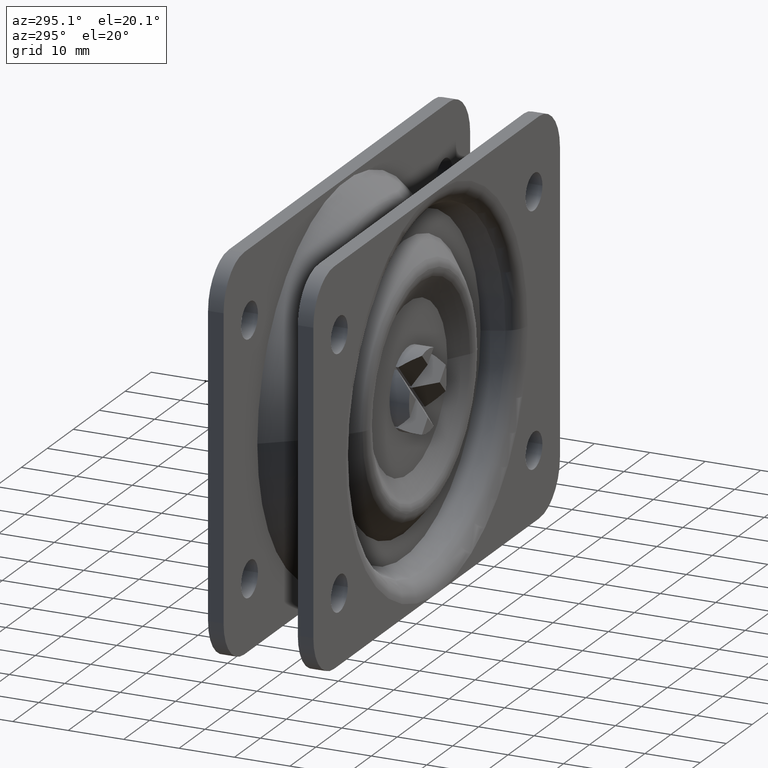
[diagram: clean part render]
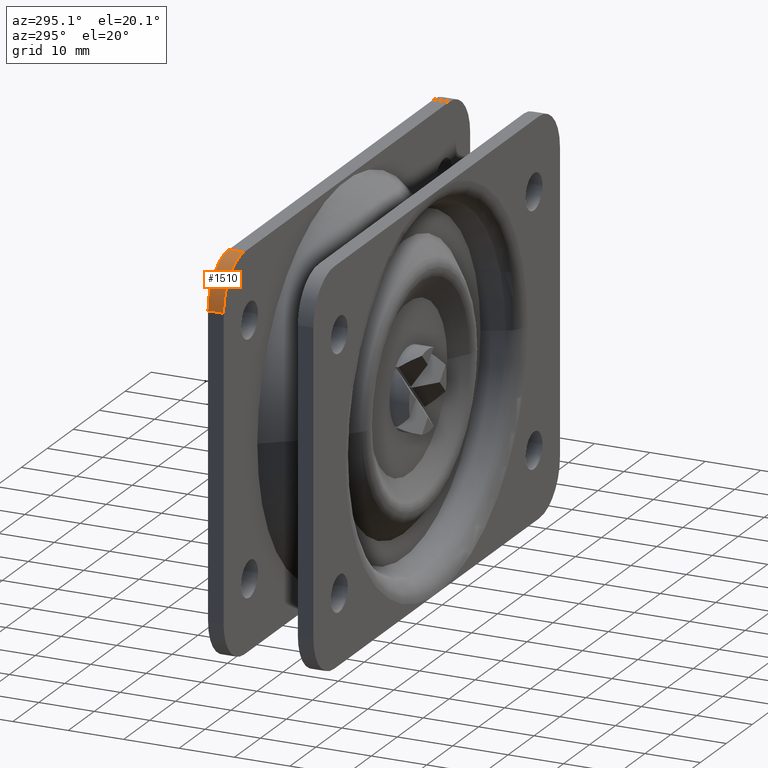
[diagram: same view with one face highlighted and labeled with its STEP entity id]
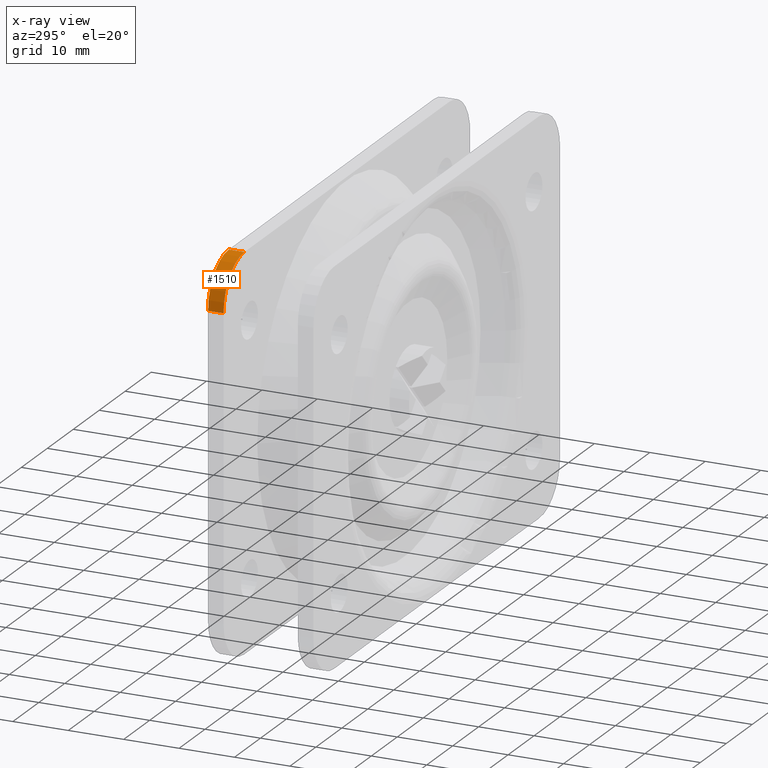
[diagram: x-ray of the same camera — body ghosted, the highlighted face saturated]
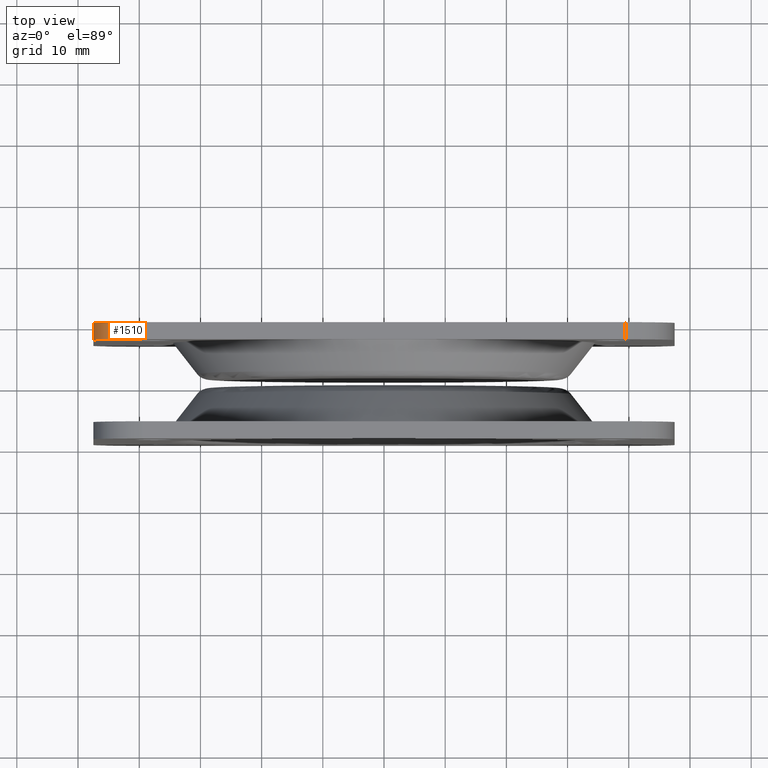
[diagram: same view with one face highlighted and labeled with its STEP entity id]
A machine part, auxiliary view. The second image highlights one B-rep face of the part: STEP entity #1510.
The next image is the same camera in x-ray: the body ghosted, the highlighted face saturated — about 0% of this face is hidden behind the body in this view.
A second angle (top view) of the same face is appended — the face is thin or edge-on in the first view.
In plain terms, the highlighted cylindrical surface (partial cylindrical patch) has radius 8 mm, axis along (0, 1, 0).
Its self-contained STEP definition (entity closure, byte-faithful):
#19 = VECTOR ( 'NONE', #3017, 1000.000000000000000 ) ;
#165 = DIRECTION ( 'NONE',  ( -1.000000000000000000, 0.0000000000000000000, 0.0000000000000000000 ) ) ;
#378 = VECTOR ( 'NONE', #1532, 1000.000000000000000 ) ;
#399 = ORIENTED_EDGE ( 'NONE', *, *, #927, .F. ) ;
#421 = ORIENTED_EDGE ( 'NONE', *, *, #459, .T. ) ;
#459 = EDGE_CURVE ( 'NONE', #1704, #2289, #1093, .T. ) ;
#570 = EDGE_LOOP ( 'NONE', ( #2336, #399, #4522, #421 ) ) ;
#644 = AXIS2_PLACEMENT_3D ( 'NONE', #3139, #2040, #165 ) ;
#672 = FACE_OUTER_BOUND ( 'NONE', #570, .T. ) ;
#704 = CIRCLE ( 'NONE', #644, 8.000000000000000000 ) ;
#811 = CIRCLE ( 'NONE', #2508, 8.000000000000000000 ) ;
#898 = CARTESIAN_POINT ( 'NONE',  ( -39.50000000000000711, -2.799999999999999822, 27.00000000000001066 ) ) ;
#927 = EDGE_CURVE ( 'NONE', #3121, #1480, #2411, .T. ) ;
#1056 = CARTESIAN_POINT ( 'NONE',  ( -39.50000000000000711, -2.799999999999999822, 35.00000000000000711 ) ) ;
#1093 = LINE ( 'NONE', #3359, #378 ) ;
#1205 = CARTESIAN_POINT ( 'NONE',  ( -39.50000000000000711, 0.0000000000000000000, 35.00000000000000711 ) ) ;
#1292 = DIRECTION ( 'NONE',  ( 0.0000000000000000000, 1.000000000000000000, 0.0000000000000000000 ) ) ;
#1310 = CARTESIAN_POINT ( 'NONE',  ( -47.50000000000001421, 0.0000000000000000000, 27.00000000000001066 ) ) ;
#1441 = EDGE_CURVE ( 'NONE', #1480, #2289, #704, .T. ) ;
#1480 = VERTEX_POINT ( 'NONE', #1310 ) ;
#1510 = ADVANCED_FACE ( 'NONE', ( #672 ), #2071, .T. ) ;
#1532 = DIRECTION ( 'NONE',  ( 0.0000000000000000000, 1.000000000000000000, 0.0000000000000000000 ) ) ;
#1704 = VERTEX_POINT ( 'NONE', #1056 ) ;
#1748 = DIRECTION ( 'NONE',  ( -1.000000000000000000, 0.0000000000000000000, 0.0000000000000000000 ) ) ;
#1882 = CARTESIAN_POINT ( 'NONE',  ( -47.50000000000001421, -2.799999999999999822, 27.00000000000001066 ) ) ;
#2040 = DIRECTION ( 'NONE',  ( 0.0000000000000000000, 1.000000000000000000, 0.0000000000000000000 ) ) ;
#2071 = CYLINDRICAL_SURFACE ( 'NONE', #3416, 8.000000000000000000 ) ;
#2289 = VERTEX_POINT ( 'NONE', #1205 ) ;
#2336 = ORIENTED_EDGE ( 'NONE', *, *, #1441, .F. ) ;
#2411 = LINE ( 'NONE', #1882, #19 ) ;
#2435 = DIRECTION ( 'NONE',  ( 0.0000000000000000000, 1.000000000000000000, 0.0000000000000000000 ) ) ;
#2508 = AXIS2_PLACEMENT_3D ( 'NONE', #2791, #2435, #1748 ) ;
#2791 = CARTESIAN_POINT ( 'NONE',  ( -39.50000000000000711, -2.799999999999999822, 27.00000000000001066 ) ) ;
#3017 = DIRECTION ( 'NONE',  ( 0.0000000000000000000, 1.000000000000000000, 0.0000000000000000000 ) ) ;
#3121 = VERTEX_POINT ( 'NONE', #3561 ) ;
#3139 = CARTESIAN_POINT ( 'NONE',  ( -39.50000000000000711, 0.0000000000000000000, 27.00000000000001066 ) ) ;
#3359 = CARTESIAN_POINT ( 'NONE',  ( -39.50000000000000711, -2.799999999999999822, 35.00000000000000711 ) ) ;
#3416 = AXIS2_PLACEMENT_3D ( 'NONE', #898, #1292, #3646 ) ;
#3561 = CARTESIAN_POINT ( 'NONE',  ( -47.50000000000001421, -2.799999999999999822, 27.00000000000001066 ) ) ;
#3646 = DIRECTION ( 'NONE',  ( -1.000000000000000000, 0.0000000000000000000, 0.0000000000000000000 ) ) ;
#4182 = EDGE_CURVE ( 'NONE', #3121, #1704, #811, .T. ) ;
#4522 = ORIENTED_EDGE ( 'NONE', *, *, #4182, .T. ) ;